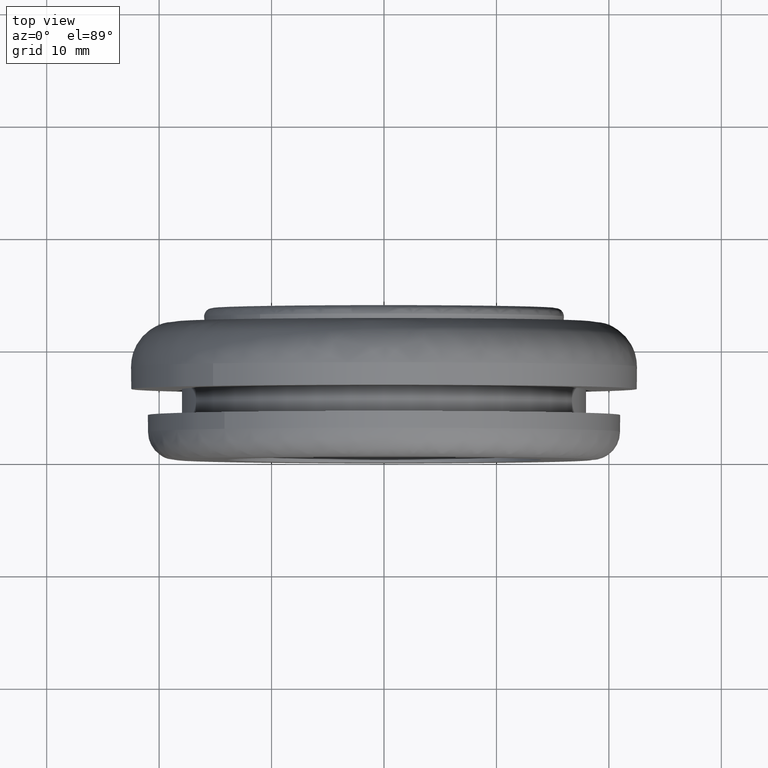
[diagram: clean part render]
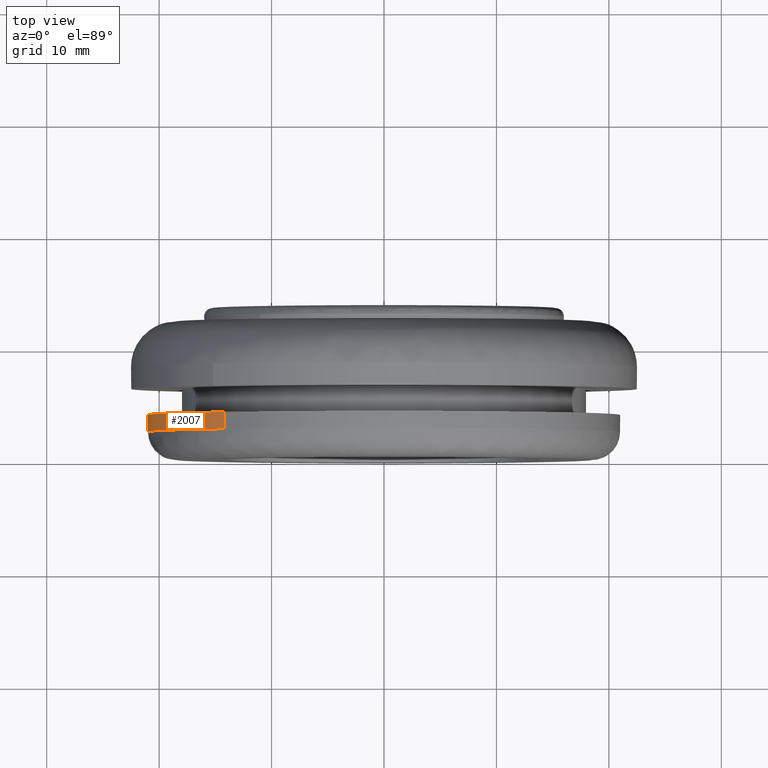
[diagram: same view with one face highlighted and labeled with its STEP entity id]
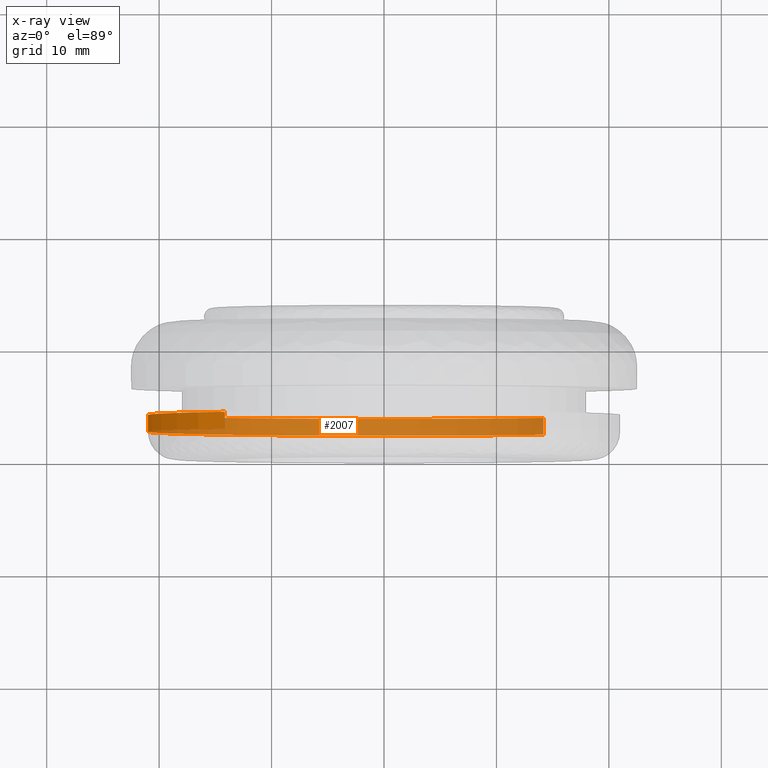
[diagram: x-ray of the same camera — body ghosted, the highlighted face saturated]
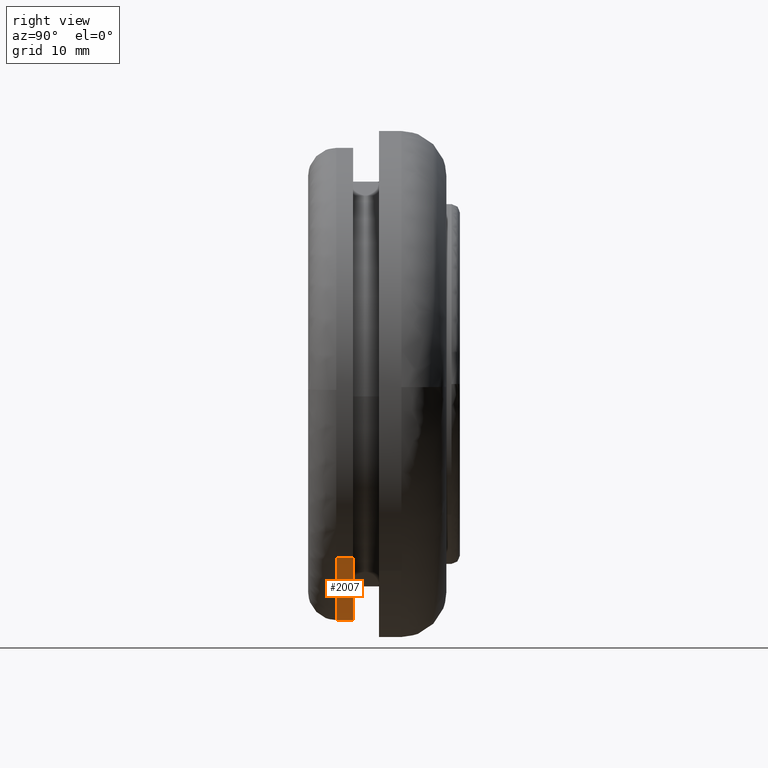
[diagram: same view with one face highlighted and labeled with its STEP entity id]
A machine part, top view. The second image highlights one B-rep face of the part: STEP entity #2007.
The next image is the same camera in x-ray: the body ghosted, the highlighted face saturated — about 81% of this face is hidden behind the body in this view.
A second angle (right view) of the same face is appended — the face is thin or edge-on in the first view.
In plain terms, the highlighted face is a freeform B-spline surface patch.
Its self-contained STEP definition (entity closure, byte-faithful):
#1524=CARTESIAN_POINT('',(-20.993367974949070,2.499999999943958,0.527732004319057));
#1525=VERTEX_POINT('',#1524);
#1539=CARTESIAN_POINT('',(0.0,2.500000000000000,-21.0));
#1540=VERTEX_POINT('',#1539);
#1541=CARTESIAN_POINT('',(-20.993367974949066,2.499999999943958,0.527732004319057));
#1542=CARTESIAN_POINT('',(-21.000000000000004,2.499999999944301,0.263907674595462));
#1543=CARTESIAN_POINT('',(-21.0,2.499999999944653,6.864827E-015));
#1544=CARTESIAN_POINT('',(-20.999999999999989,2.499999999972675,-20.999999999999989));
#1545=CARTESIAN_POINT('',(0.0,2.500000000000000,-21.0));
#1553=(BOUNDED_CURVE()B_SPLINE_CURVE(2,(#1541,#1542,#1543,#1544,#1545),.UNSPECIFIED.,.F.,.U.)B_SPLINE_CURVE_WITH_KNOTS((3,2,3),(0.745579891769733,0.750000000000000,1.0),.UNSPECIFIED.)CURVE()GEOMETRIC_REPRESENTATION_ITEM()RATIONAL_B_SPLINE_CURVE((0.989826157681407,0.994821521091733,1.0,0.707106781186547,1.0))REPRESENTATION_ITEM(''));
#1554=EDGE_CURVE('',#1525,#1540,#1553,.T.);
#1556=CARTESIAN_POINT('',(14.187393369123880,2.499999999973169,-15.482824980917981));
#1557=VERTEX_POINT('',#1556);
#1558=CARTESIAN_POINT('',(0.0,2.500000000000000,-21.0));
#1559=CARTESIAN_POINT('',(8.166452595363275,2.499999999988826,-21.000000000000004));
#1560=CARTESIAN_POINT('',(14.187393369123905,2.499999999973225,-15.482824980918020));
#1568=(BOUNDED_CURVE()B_SPLINE_CURVE(2,(#1558,#1559,#1560),.UNSPECIFIED.,.F.,.U.)B_SPLINE_CURVE_WITH_KNOTS((3,3),(0.0,0.118415199423554),.UNSPECIFIED.)CURVE()GEOMETRIC_REPRESENTATION_ITEM()RATIONAL_B_SPLINE_CURVE((1.0,0.861267964337594,0.853959782030383))REPRESENTATION_ITEM(''));
#1569=EDGE_CURVE('',#1540,#1557,#1568,.T.);
#1652=CARTESIAN_POINT('',(-14.187393369123880,2.499999999973169,15.482824980917989));
#1653=VERTEX_POINT('',#1652);
#1667=CARTESIAN_POINT('',(-14.187393369123873,2.499999999973169,15.482824980917989));
#1668=CARTESIAN_POINT('',(-20.769032830120029,2.499999999956172,9.451864341500899));
#1669=CARTESIAN_POINT('',(-20.993367974949066,2.499999999943958,0.527732004319057));
#1677=(BOUNDED_CURVE()B_SPLINE_CURVE(2,(#1667,#1668,#1669),.UNSPECIFIED.,.F.,.U.)B_SPLINE_CURVE_WITH_KNOTS((3,3),(0.618415199423554,0.745579891769733),.UNSPECIFIED.)CURVE()GEOMETRIC_REPRESENTATION_ITEM()RATIONAL_B_SPLINE_CURVE((0.853959782030383,0.846111610856156,0.989826157681407))REPRESENTATION_ITEM(''));
#1678=EDGE_CURVE('',#1653,#1525,#1677,.T.);
#1903=CARTESIAN_POINT('',(14.187393352190931,4.0,-15.482824996434170));
#1904=VERTEX_POINT('',#1903);
#1905=CARTESIAN_POINT('',(14.187393352190931,4.0,-15.482824996434170));
#1906=CARTESIAN_POINT('',(14.187393369123880,2.499999999973169,-15.482824980917981));
#1907=QUASI_UNIFORM_CURVE('',1,(#1905,#1906),.UNSPECIFIED.,.F.,.U.);
#1908=EDGE_CURVE('',#1904,#1557,#1907,.T.);
#1927=CARTESIAN_POINT('',(-14.187393352190920,4.0,15.482824996434170));
#1928=VERTEX_POINT('',#1927);
#1942=CARTESIAN_POINT('',(-14.187393352190920,4.0,15.482824996434170));
#1943=CARTESIAN_POINT('',(-14.187393369123880,2.499999999973169,15.482824980917989));
#1944=QUASI_UNIFORM_CURVE('',1,(#1942,#1943),.UNSPECIFIED.,.F.,.U.);
#1945=EDGE_CURVE('',#1928,#1653,#1944,.T.);
#1952=CARTESIAN_POINT('',(-14.187394359928859,4.037500000001401,15.482824073012599));
#1953=CARTESIAN_POINT('',(-29.670218432941464,4.037500000001402,1.295429713083735));
#1954=CARTESIAN_POINT('',(-15.482824073012599,4.037500000001401,-14.187394359928859));
#1955=CARTESIAN_POINT('',(-1.295429713083735,4.037500000001402,-29.670218432941464));
#1956=CARTESIAN_POINT('',(14.187394359928859,4.037500000001401,-15.482824073012599));
#1957=CARTESIAN_POINT('',(-14.187394359928859,2.461562499942522,15.482824073012599));
#1958=CARTESIAN_POINT('',(-29.670218432941464,2.461562499942522,1.295429713083735));
#1959=CARTESIAN_POINT('',(-15.482824073012599,2.461562499942522,-14.187394359928859));
#1960=CARTESIAN_POINT('',(-1.295429713083735,2.461562499942522,-29.670218432941464));
#1961=CARTESIAN_POINT('',(14.187394359928859,2.461562499942522,-15.482824073012599));
#1969=(BOUNDED_SURFACE()B_SPLINE_SURFACE(2,1,((#1952,#1957),(#1953,#1958),(#1954,#1959),(#1955,#1960),(#1956,#1961)),.UNSPECIFIED.,.F.,.F.,.U.)B_SPLINE_SURFACE_WITH_KNOTS((3,2,3),(2,2),(0.0,34.793939239339970,69.587878478679940),(0.0,1.0),.UNSPECIFIED.)GEOMETRIC_REPRESENTATION_ITEM()RATIONAL_B_SPLINE_SURFACE(((1.0,1.0),(0.707106781186548,0.707106781186548),(1.0,1.0),(0.707106781186548,0.707106781186548),(1.0,1.0)))REPRESENTATION_ITEM('')SURFACE());
#1970=ORIENTED_EDGE('',*,*,#1569,.F.);
#1971=ORIENTED_EDGE('',*,*,#1554,.F.);
#1972=ORIENTED_EDGE('',*,*,#1678,.F.);
#1973=ORIENTED_EDGE('',*,*,#1945,.F.);
#1974=CARTESIAN_POINT('',(0.0,4.0,-21.0));
#1975=VERTEX_POINT('',#1974);
#1976=CARTESIAN_POINT('',(-14.187393352190952,4.000000000000001,15.482824996434207));
#1977=CARTESIAN_POINT('',(-21.000000000000004,4.0,9.240221964463121));
#1978=CARTESIAN_POINT('',(-21.0,4.0,-3.061516E-016));
#1979=CARTESIAN_POINT('',(-21.000000000000007,4.0,-21.000000000000007));
#1980=CARTESIAN_POINT('',(0.0,4.0,-21.0));
#1988=(BOUNDED_CURVE()B_SPLINE_CURVE(2,(#1976,#1977,#1978,#1979,#1980),.UNSPECIFIED.,.F.,.U.)B_SPLINE_CURVE_WITH_KNOTS((3,2,3),(0.618415199258455,0.750000000000000,1.0),.UNSPECIFIED.)CURVE()GEOMETRIC_REPRESENTATION_ITEM()RATIONAL_B_SPLINE_CURVE((0.853959782050762,0.845838816655528,1.0,0.707106781186547,1.0))REPRESENTATION_ITEM(''));
#1989=EDGE_CURVE('',#1928,#1975,#1988,.T.);
#1990=ORIENTED_EDGE('',*,*,#1989,.T.);
#1991=CARTESIAN_POINT('',(0.0,4.0,-21.0));
#1992=CARTESIAN_POINT('',(8.166452582143240,4.0,-21.0));
#1993=CARTESIAN_POINT('',(14.187393352190954,4.0,-15.482824996434211));
#2001=(BOUNDED_CURVE()B_SPLINE_CURVE(2,(#1991,#1992,#1993),.UNSPECIFIED.,.F.,.U.)B_SPLINE_CURVE_WITH_KNOTS((3,3),(0.0,0.118415199258455),.UNSPECIFIED.)CURVE()GEOMETRIC_REPRESENTATION_ITEM()RATIONAL_B_SPLINE_CURVE((1.0,0.861267964531020,0.853959782050762))REPRESENTATION_ITEM(''));
#2002=EDGE_CURVE('',#1975,#1904,#2001,.T.);
#2003=ORIENTED_EDGE('',*,*,#2002,.T.);
#2004=ORIENTED_EDGE('',*,*,#1908,.T.);
#2005=EDGE_LOOP('',(#1970,#1971,#1972,#1973,#1990,#2003,#2004));
#2006=FACE_OUTER_BOUND('',#2005,.T.);
#2007=ADVANCED_FACE('',(#2006),#1969,.T.);